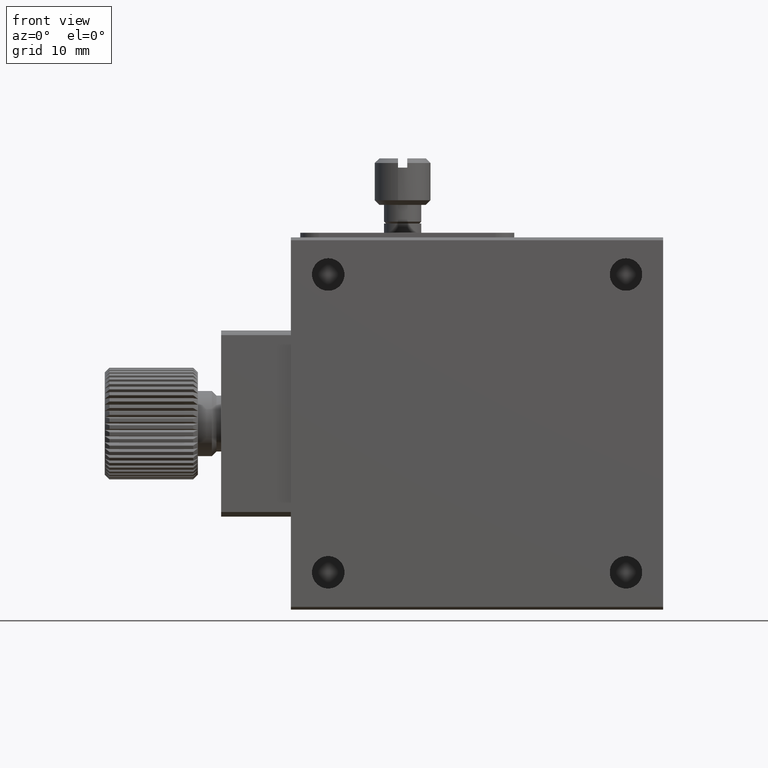
[diagram: clean part render]
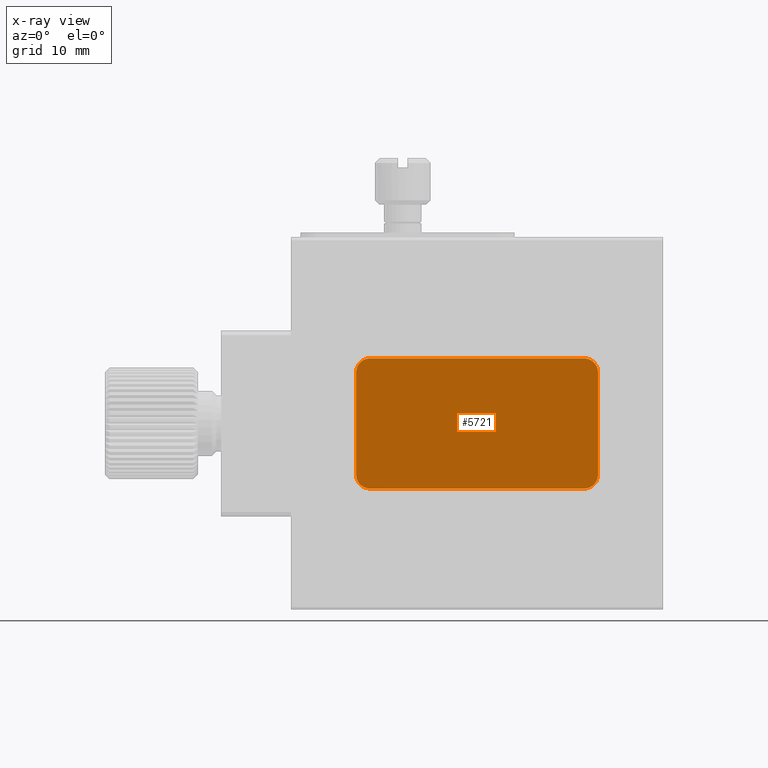
[diagram: x-ray — body ghosted, one internal face saturated and labeled with its STEP entity id]
A machine part, front view, then the same camera in x-ray: the body is ghosted and one INTERNAL B-rep face — a face not visible from any outside direction — is saturated and labeled: STEP entity #5721.
In plain terms, the highlighted planar face has unit normal (0, 1, 0).
Its self-contained STEP definition (entity closure, byte-faithful):
#185 = DIRECTION ( 'NONE',  ( 1.000000000000000000, 0.000000000000000000, -0.000000000000000000 ) ) ;
#219 = VECTOR ( 'NONE', #5020, 1000.000000000000000 ) ;
#327 = CARTESIAN_POINT ( 'NONE',  ( 31.50000000000000000, 3.000000000000000000, -25.50000000000000355 ) ) ;
#687 = AXIS2_PLACEMENT_3D ( 'NONE', #12150, #2056, #6144 ) ;
#713 = CIRCLE ( 'NONE', #3500, 1.499999999999999556 ) ;
#955 = PLANE ( 'NONE',  #5732 ) ;
#1200 = LINE ( 'NONE', #10165, #4569 ) ;
#1225 = VERTEX_POINT ( 'NONE', #9966 ) ;
#1247 = LINE ( 'NONE', #4407, #1550 ) ;
#1255 = ORIENTED_EDGE ( 'NONE', *, *, #12146, .T. ) ;
#1341 = VERTEX_POINT ( 'NONE', #1941 ) ;
#1550 = VECTOR ( 'NONE', #9422, 1000.000000000000000 ) ;
#1575 = ORIENTED_EDGE ( 'NONE', *, *, #4953, .T. ) ;
#1607 = DIRECTION ( 'NONE',  ( 0.000000000000000000, 1.000000000000000000, 0.000000000000000000 ) ) ;
#1686 = CARTESIAN_POINT ( 'NONE',  ( 7.000000000000000000, 3.000000000000000000, -25.50000000000000355 ) ) ;
#1849 = ORIENTED_EDGE ( 'NONE', *, *, #2914, .T. ) ;
#1929 = CARTESIAN_POINT ( 'NONE',  ( 31.50000000000000000, 3.000000000000000000, -27.00000000000000000 ) ) ;
#1941 = CARTESIAN_POINT ( 'NONE',  ( 7.000000000000000888, 3.000000000000000000, -14.50000000000000000 ) ) ;
#2056 = DIRECTION ( 'NONE',  ( 0.000000000000000000, 1.000000000000000000, 0.000000000000000000 ) ) ;
#2364 = VERTEX_POINT ( 'NONE', #3187 ) ;
#2548 = CARTESIAN_POINT ( 'NONE',  ( 32.99999999999999289, 3.000000000000000000, -25.50000000000000355 ) ) ;
#2914 = EDGE_CURVE ( 'NONE', #6993, #2364, #9303, .T. ) ;
#3102 = DIRECTION ( 'NONE',  ( 0.000000000000000000, -0.000000000000000000, 1.000000000000000000 ) ) ;
#3146 = DIRECTION ( 'NONE',  ( 0.000000000000000000, 1.000000000000000000, 0.000000000000000000 ) ) ;
#3187 = CARTESIAN_POINT ( 'NONE',  ( 8.500000000000000000, 3.000000000000000000, -27.00000000000000355 ) ) ;
#3480 = CIRCLE ( 'NONE', #6905, 1.499999999999990896 ) ;
#3500 = AXIS2_PLACEMENT_3D ( 'NONE', #5159, #3146, #9242 ) ;
#3965 = CARTESIAN_POINT ( 'NONE',  ( 33.00000000000000000, 3.000000000000000000, -14.50000000000000000 ) ) ;
#4327 = EDGE_CURVE ( 'NONE', #1341, #4840, #713, .T. ) ;
#4407 = CARTESIAN_POINT ( 'NONE',  ( 7.000000000000000000, 3.000000000000000000, -25.50000000000000355 ) ) ;
#4419 = EDGE_CURVE ( 'NONE', #4840, #1225, #1200, .T. ) ;
#4569 = VECTOR ( 'NONE', #185, 1000.000000000000000 ) ;
#4751 = EDGE_CURVE ( 'NONE', #2364, #10038, #9254, .T. ) ;
#4840 = VERTEX_POINT ( 'NONE', #6338 ) ;
#4953 = EDGE_CURVE ( 'NONE', #10038, #1341, #1247, .T. ) ;
#5020 = DIRECTION ( 'NONE',  ( -1.000000000000000000, 0.000000000000000000, -0.000000000000000000 ) ) ;
#5078 = AXIS2_PLACEMENT_3D ( 'NONE', #9664, #12531, #11653 ) ;
#5159 = CARTESIAN_POINT ( 'NONE',  ( 8.500000000000000000, 3.000000000000000000, -14.50000000000000000 ) ) ;
#5305 = EDGE_CURVE ( 'NONE', #1225, #9992, #10830, .T. ) ;
#5721 = ADVANCED_FACE ( 'NONE', ( #6979 ), #955, .T. ) ;
#5732 = AXIS2_PLACEMENT_3D ( 'NONE', #7174, #12258, #3102 ) ;
#5733 = ORIENTED_EDGE ( 'NONE', *, *, #10322, .T. ) ;
#5939 = EDGE_LOOP ( 'NONE', ( #1849, #10667, #1575, #10782, #12845, #13232, #1255, #5733 ) ) ;
#6144 = DIRECTION ( 'NONE',  ( 0.000000000000000000, 0.000000000000000000, 1.000000000000000000 ) ) ;
#6338 = CARTESIAN_POINT ( 'NONE',  ( 8.500000000000000000, 3.000000000000000000, -13.00000000000000178 ) ) ;
#6699 = LINE ( 'NONE', #12917, #11948 ) ;
#6905 = AXIS2_PLACEMENT_3D ( 'NONE', #327, #1607, #10495 ) ;
#6979 = FACE_OUTER_BOUND ( 'NONE', #5939, .T. ) ;
#6993 = VERTEX_POINT ( 'NONE', #7310 ) ;
#7174 = CARTESIAN_POINT ( 'NONE',  ( 8.500000000000000000, 3.000000000000000000, -14.50000000000000000 ) ) ;
#7310 = CARTESIAN_POINT ( 'NONE',  ( 31.50000000000000000, 3.000000000000000000, -27.00000000000000000 ) ) ;
#9242 = DIRECTION ( 'NONE',  ( 0.000000000000000000, 0.000000000000000000, 1.000000000000000000 ) ) ;
#9254 = CIRCLE ( 'NONE', #687, 1.500000000000001332 ) ;
#9303 = LINE ( 'NONE', #1929, #219 ) ;
#9422 = DIRECTION ( 'NONE',  ( 0.000000000000000000, 0.000000000000000000, 1.000000000000000000 ) ) ;
#9664 = CARTESIAN_POINT ( 'NONE',  ( 31.50000000000000000, 3.000000000000000000, -14.50000000000000000 ) ) ;
#9765 = DIRECTION ( 'NONE',  ( 0.000000000000000000, 0.000000000000000000, -1.000000000000000000 ) ) ;
#9966 = CARTESIAN_POINT ( 'NONE',  ( 31.50000000000000000, 3.000000000000000000, -13.00000000000000178 ) ) ;
#9992 = VERTEX_POINT ( 'NONE', #3965 ) ;
#10038 = VERTEX_POINT ( 'NONE', #1686 ) ;
#10165 = CARTESIAN_POINT ( 'NONE',  ( 8.500000000000000000, 3.000000000000000000, -13.00000000000000178 ) ) ;
#10322 = EDGE_CURVE ( 'NONE', #12112, #6993, #3480, .T. ) ;
#10495 = DIRECTION ( 'NONE',  ( 0.000000000000000000, 0.000000000000000000, 1.000000000000000000 ) ) ;
#10667 = ORIENTED_EDGE ( 'NONE', *, *, #4751, .T. ) ;
#10782 = ORIENTED_EDGE ( 'NONE', *, *, #4327, .T. ) ;
#10830 = CIRCLE ( 'NONE', #5078, 1.499999999999999556 ) ;
#11653 = DIRECTION ( 'NONE',  ( 0.000000000000000000, 0.000000000000000000, 1.000000000000000000 ) ) ;
#11948 = VECTOR ( 'NONE', #9765, 1000.000000000000000 ) ;
#12112 = VERTEX_POINT ( 'NONE', #2548 ) ;
#12146 = EDGE_CURVE ( 'NONE', #9992, #12112, #6699, .T. ) ;
#12150 = CARTESIAN_POINT ( 'NONE',  ( 8.500000000000000000, 3.000000000000000000, -25.50000000000000355 ) ) ;
#12258 = DIRECTION ( 'NONE',  ( 0.000000000000000000, 1.000000000000000000, 0.000000000000000000 ) ) ;
#12531 = DIRECTION ( 'NONE',  ( 0.000000000000000000, 1.000000000000000000, 0.000000000000000000 ) ) ;
#12845 = ORIENTED_EDGE ( 'NONE', *, *, #4419, .T. ) ;
#12917 = CARTESIAN_POINT ( 'NONE',  ( 33.00000000000000000, 3.000000000000000000, -14.50000000000000000 ) ) ;
#13232 = ORIENTED_EDGE ( 'NONE', *, *, #5305, .T. ) ;